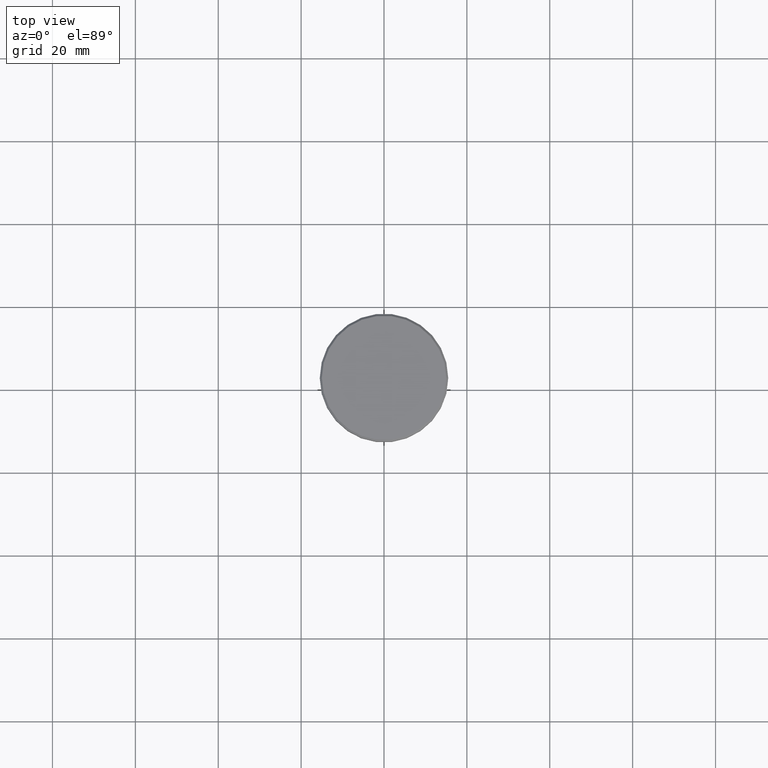
[diagram: clean part render]
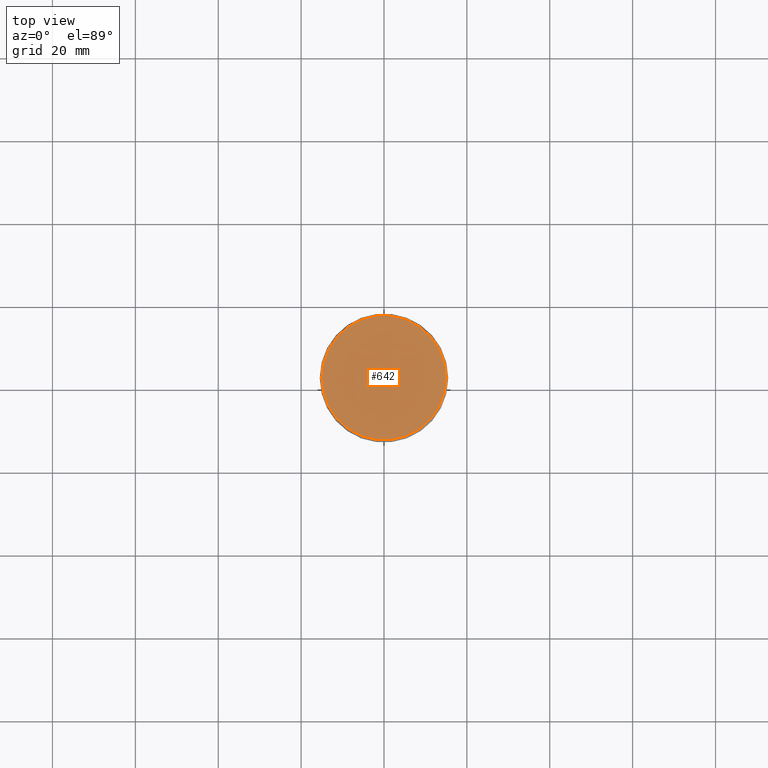
[diagram: same view with one face highlighted and labeled with its STEP entity id]
A machine part, top view. The second image highlights one B-rep face of the part: STEP entity #642.
In plain terms, the highlighted planar face has unit normal (0, -0, 1).
Its self-contained STEP definition (entity closure, byte-faithful):
#45 = DIRECTION ( 'NONE',  ( 1.000000000000000000, 0.000000000000000000, 0.000000000000000000 ) ) ;
#52 = ORIENTED_EDGE ( 'NONE', *, *, #890, .T. ) ;
#68 = AXIS2_PLACEMENT_3D ( 'NONE', #292, #373, #368 ) ;
#73 = VERTEX_POINT ( 'NONE', #174 ) ;
#89 = CARTESIAN_POINT ( 'NONE',  ( 0.000000000000000000, 0.000000000000000000, 0.000000000000000000 ) ) ;
#112 = EDGE_CURVE ( 'NONE', #522, #73, #589, .T. ) ;
#143 = AXIS2_PLACEMENT_3D ( 'NONE', #972, #409, #45 ) ;
#165 = CIRCLE ( 'NONE', #143, 14.99999999999998579 ) ;
#174 = CARTESIAN_POINT ( 'NONE',  ( -14.99999999999998579, 0.000000000000000000, 0.000000000000000000 ) ) ;
#292 = CARTESIAN_POINT ( 'NONE',  ( 0.000000000000000000, 0.000000000000000000, 0.000000000000000000 ) ) ;
#368 = DIRECTION ( 'NONE',  ( 1.000000000000000000, 0.000000000000000000, 0.000000000000000000 ) ) ;
#373 = DIRECTION ( 'NONE',  ( -0.000000000000000000, -0.000000000000000000, 1.000000000000000000 ) ) ;
#409 = DIRECTION ( 'NONE',  ( -0.000000000000000000, -0.000000000000000000, 1.000000000000000000 ) ) ;
#449 = EDGE_LOOP ( 'NONE', ( #52, #1012 ) ) ;
#465 = DIRECTION ( 'NONE',  ( 0.000000000000000000, -0.000000000000000000, 1.000000000000000000 ) ) ;
#522 = VERTEX_POINT ( 'NONE', #595 ) ;
#589 = CIRCLE ( 'NONE', #68, 14.99999999999998579 ) ;
#595 = CARTESIAN_POINT ( 'NONE',  ( 14.99999999999998579, 1.867586368699712587E-15, 0.000000000000000000 ) ) ;
#642 = ADVANCED_FACE ( 'NONE', ( #981 ), #1069, .T. ) ;
#702 = AXIS2_PLACEMENT_3D ( 'NONE', #89, #465, #1156 ) ;
#890 = EDGE_CURVE ( 'NONE', #73, #522, #165, .T. ) ;
#972 = CARTESIAN_POINT ( 'NONE',  ( 0.000000000000000000, 0.000000000000000000, 0.000000000000000000 ) ) ;
#981 = FACE_OUTER_BOUND ( 'NONE', #449, .T. ) ;
#1012 = ORIENTED_EDGE ( 'NONE', *, *, #112, .T. ) ;
#1069 = PLANE ( 'NONE',  #702 ) ;
#1156 = DIRECTION ( 'NONE',  ( 1.000000000000000000, 0.000000000000000000, 0.000000000000000000 ) ) ;